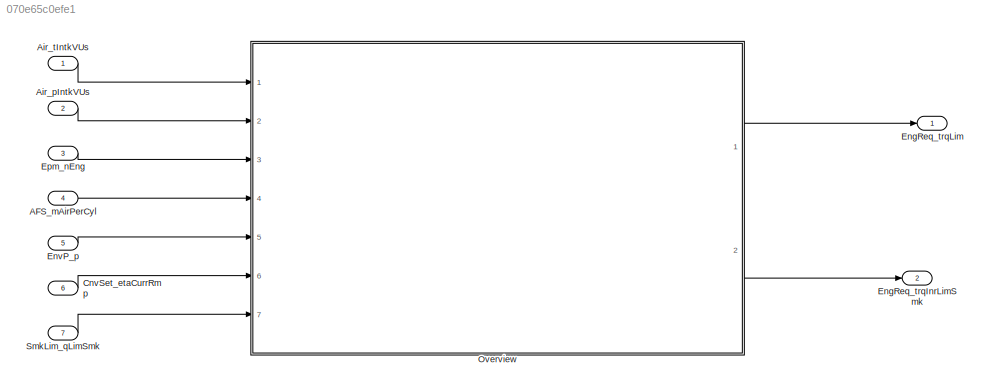
MODEL slx_070e65c0efe1
KIND model
CONFIG AbsTol = auto
CONFIG EnableMultiTasking = off
CONFIG FixedStep = auto
CONFIG MaxStep = auto
CONFIG MinStep = auto
CONFIG RelTol = 1e-3
CONFIG SampleTimeConstraint = Unconstrained
CONFIG Solver = VariableStepAuto
CONFIG SolverName = VariableStepAuto
CONFIG StartTime = 0.0
CONFIG StopTime = 10.0
BLOCK [Inport] AFS_mAirPerCyl
  IconDisplay = Port number
  Port = 4
BLOCK [Inport] Air_pIntkVUs
  IconDisplay = Port number
  Port = 2
BLOCK [Inport] Air_tIntkVUs
  IconDisplay = Port number
BLOCK [Inport] CnvSet_etaCurrRmp
  IconDisplay = Port number
  Port = 6
BLOCK [Outport] EngReq_trqInrLimSmk
  IconDisplay = Port number
  Port = 2
BLOCK [Outport] EngReq_trqLim
  IconDisplay = Port number
BLOCK [Inport] EnvP_p
  IconDisplay = Port number
  Port = 5
BLOCK [Inport] Epm_nEng
  IconDisplay = Port number
  Port = 3
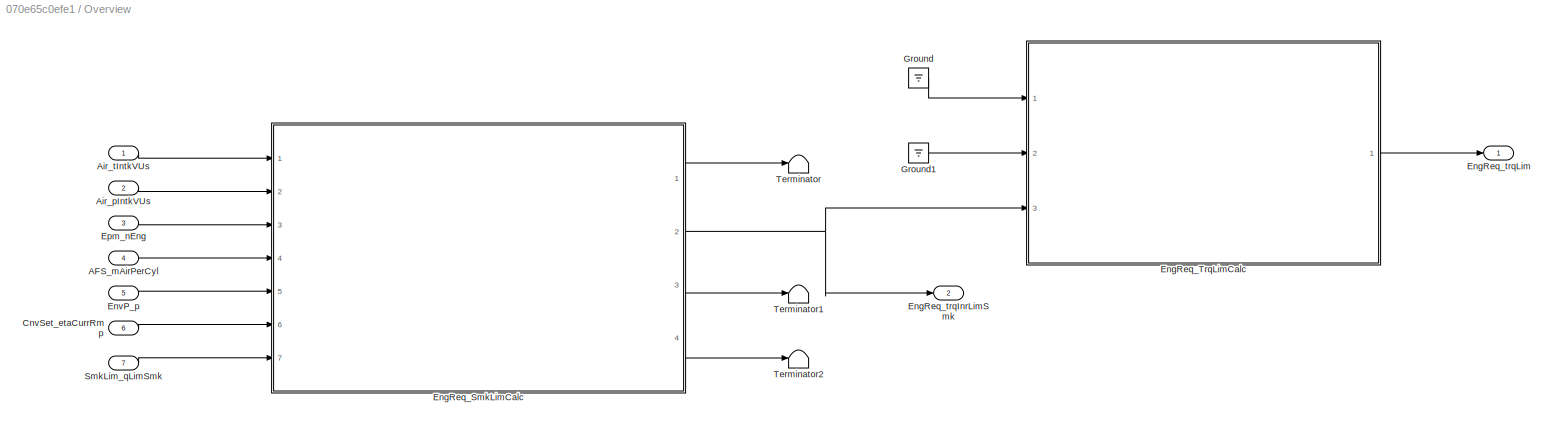
BLOCK [SubSystem] Overview
  Ports = [7, 2]
  RequestExecContextInheritance = off
BLOCK [Inport] Overview/AFS_mAirPerCyl
  IconDisplay = Port number
  Port = 4
BLOCK [Inport] Overview/Air_pIntkVUs
  IconDisplay = Port number
  Port = 2
BLOCK [Inport] Overview/Air_tIntkVUs
  IconDisplay = Port number
BLOCK [Inport] Overview/CnvSet_etaCurrRmp
  IconDisplay = Port number
  Port = 6
BLOCK [ModelReference] Overview/EngReq_SmkLimCalc
  ModelNameDialog = EngReq_SmkLimCalc
  ModelReferenceVersion = 1.51
  Ports = [7, 4]
BLOCK [ModelReference] Overview/EngReq_TrqLimCalc
  ModelNameDialog = EngReq_TrqLimCalc
  ModelReferenceVersion = 1.49
  Ports = [3, 1]
BLOCK [Outport] Overview/EngReq_trqInrLimSmk
  IconDisplay = Port number
  Port = 2
BLOCK [Outport] Overview/EngReq_trqLim
  IconDisplay = Port number
BLOCK [Inport] Overview/EnvP_p
  IconDisplay = Port number
  Port = 5
BLOCK [Inport] Overview/Epm_nEng
  IconDisplay = Port number
  Port = 3
BLOCK [Ground] Overview/Ground
BLOCK [Ground] Overview/Ground1
BLOCK [Inport] Overview/SmkLim_qLimSmk
  IconDisplay = Port number
  Port = 7
BLOCK [Terminator] Overview/Terminator
BLOCK [Terminator] Overview/Terminator1
BLOCK [Terminator] Overview/Terminator2
BLOCK [Inport] SmkLim_qLimSmk
  IconDisplay = Port number
  Port = 7
LINE AFS_mAirPerCyl:1 -> Overview:4
LINE Air_pIntkVUs:1 -> Overview:2
LINE Air_tIntkVUs:1 -> Overview:1
LINE CnvSet_etaCurrRmp:1 -> Overview:6
LINE EnvP_p:1 -> Overview:5
LINE Epm_nEng:1 -> Overview:3
LINE Overview/AFS_mAirPerCyl:1 -> Overview/EngReq_SmkLimCalc:4
LINE Overview/Air_pIntkVUs:1 -> Overview/EngReq_SmkLimCalc:2
LINE Overview/Air_tIntkVUs:1 -> Overview/EngReq_SmkLimCalc:1
LINE Overview/CnvSet_etaCurrRmp:1 -> Overview/EngReq_SmkLimCalc:6
LINE Overview/EngReq_SmkLimCalc:1 -> Overview/Terminator:1
NET Overview/EngReq_SmkLimCalc:2 -> Overview/EngReq_TrqLimCalc:3, Overview/EngReq_trqInrLimSmk:1
LINE Overview/EngReq_SmkLimCalc:3 -> Overview/Terminator1:1
LINE Overview/EngReq_SmkLimCalc:4 -> Overview/Terminator2:1
LINE Overview/EngReq_TrqLimCalc:1 -> Overview/EngReq_trqLim:1
LINE Overview/EnvP_p:1 -> Overview/EngReq_SmkLimCalc:5
LINE Overview/Epm_nEng:1 -> Overview/EngReq_SmkLimCalc:3
LINE Overview/Ground1:1 -> Overview/EngReq_TrqLimCalc:2
LINE Overview/Ground:1 -> Overview/EngReq_TrqLimCalc:1
LINE Overview/SmkLim_qLimSmk:1 -> Overview/EngReq_SmkLimCalc:7
LINE Overview:1 -> EngReq_trqLim:1
LINE Overview:2 -> EngReq_trqInrLimSmk:1
LINE SmkLim_qLimSmk:1 -> Overview:7
note: NET lines group one-source signal fan-out (src -> all destinations, sorted); 1:1 wires keep LINE
